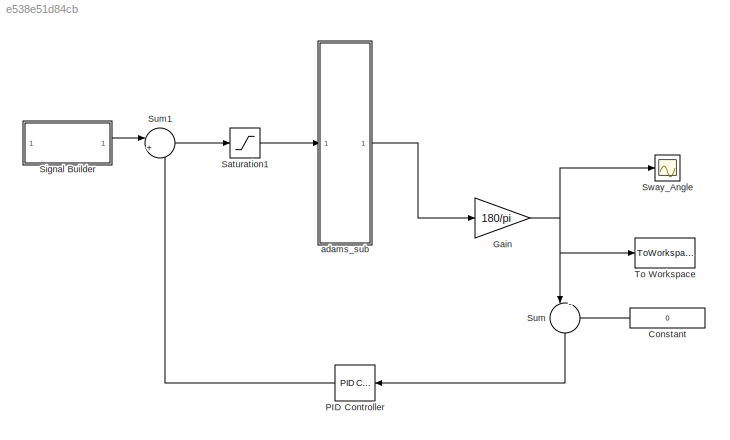
MODEL slx_e538e51d84cb
KIND model
CONFIG AbsTol = auto
CONFIG EnableMultiTasking = on
CONFIG FixedStep = Ts
CONFIG MaxStep = auto
CONFIG MinStep = auto
CONFIG RelTol = 1e-3
CONFIG SampleTimeConstraint = Unconstrained
CONFIG SolverName = ode23t
CONFIG StartTime = 0.0
CONFIG StopTime = 5
BLOCK [Constant] Constant
  NameLocation = top
  Value = 0
BLOCK [Gain] Gain
  Gain = 180/pi
BLOCK [Reference] PID Controller  REF=slpidlib/PID Controller
  NameLocation = top
  SourceBlock = slpidlib/PID Controller
  SourceType = PID 1dof
BLOCK [Saturate] Saturation1
  LowerLimit = -500
  UpperLimit = 500
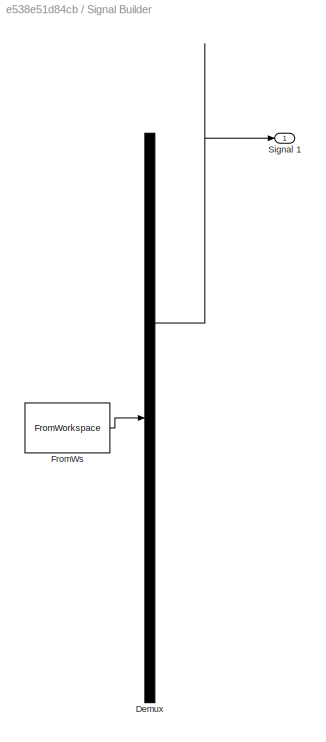
BLOCK [SubSystem] Signal Builder
  ClipboardFcn = sigbuilder_block('clipboard');
  CloseFcn = sigbuilder_block('close');
  ContinueFcn = sigbuilder_block('continue');
  CopyFcn = sigbuilder_block('copy');
  DeleteFcn = sigbuilder_block('delete');
  LoadFcn = sigbuilder_block('load');
  MaskHideContents = on
  ModelCloseFcn = sigbuilder_block('modelClose');
  NameChangeFcn = sigbuilder_block('namechange');
  OpenFcn = sigbuilder_block('open',[252.75 107.25 644.25 387.75 ]);
  PauseFcn = sigbuilder_block('pause');
  PreSaveFcn = sigbuilder_block('preSave');
  StartFcn = sigbuilder_block('start');
  StopFcn = sigbuilder_block('stop');
  Tag = STV Subsys
BLOCK [Demux] Signal Builder/Demux
  DisplayOption = none
  Outputs = 1
  Tag = STV Demux
BLOCK [FromWorkspace] Signal Builder/FromWs
  Tag = STV FromWs
  VariableName = tuvar
BLOCK [Outport] Signal Builder/Signal 1
  Tag = STV Outport
BLOCK [Sum] Sum
  Inputs = |-+
  NameLocation = left
BLOCK [Sum] Sum1
  Inputs = |++
BLOCK [Scope] Sway_Angle
  ActiveDisplayYMaximum = 3.1126072191880634
  ActiveDisplayYMinimum = -2.8753584069201268
  ContainerLayout = {"WindowBounds":[128,48,1280,768]}
  DataLoggingVariableName = ScopeData1
  Floating = off
  GraphicalSettings = {"Style":{"BackgroundColor":[0.12941176470588237,0.12941176470588237,0.12941176470588237],"AxesColor":[0.07058823529411765,0.07058823529411765,0.07058823529411765],"LabelsColor":[0.8509803921568627,0.8509803921568627,0.8509803921568627],"PreserveColors":false,"Visible":[true],"LineStyle":["-"],"LineWidth":[1.5],"BarWidth":[0.9],"LineColor":["auto"],"LineFaceAlpha":[1],"LineEdgeAlpha":[1],"Marker":...<+1992ch>
  MultipleDisplayCache = [{"MaxYLimMag":3.1126072191880634,"MaxYLimReal":3.1126072191880634,"MinYLimMag":0,"MinYLimReal":-2.8753584069201268,"PlotAsMagnitudePhase":false,"ShowGrid":true,"ShowLegend":false,"Title":"%<SignalLabel>","YLabel":""}]
  NumInputPorts = 1
  ScopeFrameLocation = container
  Visible = on
  WasSavedAsWebScope = on
  WindowPosition = [128.000000,48.000000,1280.000000,768.000000,]
BLOCK [ToWorkspace] To Workspace
  MaxDataPoints = inf
  SampleTime = -1
  VariableName = swayAngle
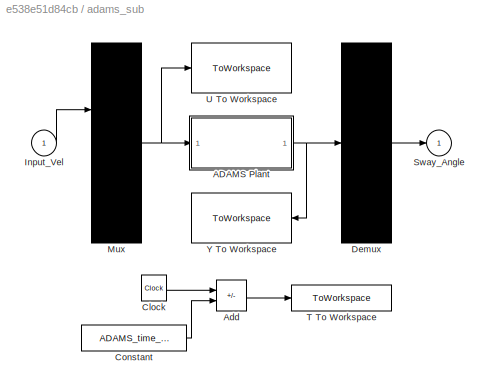
BLOCK [SubSystem] adams_sub
  ShowPortLabels = none
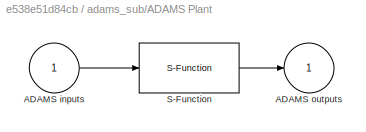
BLOCK [SubSystem] adams_sub/ADAMS Plant
  InitFcn = clear mex
  LoadFcn = %check based on dialog box setting for when setting by popup menu                                             \nif exist('ADAMS_solver_type')                                                                                 \n  if strcmp(ADAMS_solver_type,'C++')                                                                          \n    set_param(gcb,'exetyp','C++');                                 ...<+4486ch>
  OpenFcn = open_system(gcb,'mask')                                                                                                                          \nif not(exist('set_some_params_states'))                                                                                                          \n                                                                                                            ...<+625ch>
BLOCK [Inport] adams_sub/ADAMS Plant/ADAMS inputs
BLOCK [Outport] adams_sub/ADAMS Plant/ADAMS outputs
  InitialOutput = 0
  VectorParamsAs1DForOutWhenUnconnected = off
BLOCK [S-Function] adams_sub/ADAMS Plant/S-Function
  EnableBusSupport = off
  FunctionName = adams_plant
  Parameters = exevie,exesol,stat,outfil,nampre,o_rate,nam_in,namout,dft,modsim,modani,dt_out,inicmd,exetyp,comtyp,ada_host, workdir,pin_interp_order,pout_extrap_order,pin_extrap_order,pout_interp_order,simulink_lead_cosim,time_offset,pinput_id,poutput_id
  SFcnIsStateOwnerBlock = off
  SFunctionDeploymentMode = off
  StopFcn = clear mex
BLOCK [Sum] adams_sub/Add
  IconShape = rectangular
  Inputs = +-
BLOCK [Clock] adams_sub/Clock
BLOCK [Constant] adams_sub/Constant
  Value = ADAMS_time_offset
BLOCK [Demux] adams_sub/Demux
  DisplayOption = none
  Outputs = 1
BLOCK [Inport] adams_sub/Input_Vel
BLOCK [Mux] adams_sub/Mux
  Inputs = 1
BLOCK [Outport] adams_sub/Sway_Angle
BLOCK [ToWorkspace] adams_sub/T To Workspace
  MaxDataPoints = 100000
  VariableName = ADAMS_tout
BLOCK [ToWorkspace] adams_sub/U To Workspace
  MaxDataPoints = 100000
  VariableName = ADAMS_uout
BLOCK [ToWorkspace] adams_sub/Y To Workspace
  MaxDataPoints = 100000
  VariableName = ADAMS_yout
LINE Constant:1 -> Sum:2
NET Gain:1 -> Sum:1, Sway_Angle:1, To Workspace:1
LINE PID Controller:1 -> Sum1:2
LINE Saturation1:1 -> adams_sub:1
LINE Signal Builder:1 -> Sum1:1
LINE Sum1:1 -> Saturation1:1
LINE Sum:1 -> PID Controller:1
LINE adams_sub/ADAMS Plant/ADAMS inputs:1 -> adams_sub/ADAMS Plant/S-Function:1
LINE adams_sub/ADAMS Plant/S-Function:1 -> adams_sub/ADAMS Plant/ADAMS outputs:1
NET adams_sub/ADAMS Plant:1 -> adams_sub/Demux:1, adams_sub/Y To Workspace:1
LINE adams_sub/Add:1 -> adams_sub/T To Workspace:1
LINE adams_sub/Clock:1 -> adams_sub/Add:1
LINE adams_sub/Constant:1 -> adams_sub/Add:2
LINE adams_sub/Demux:1 -> adams_sub/Sway_Angle:1
LINE adams_sub/Input_Vel:1 -> adams_sub/Mux:1
NET adams_sub/Mux:1 -> adams_sub/ADAMS Plant:1, adams_sub/U To Workspace:1
LINE adams_sub:1 -> Gain:1
note: NET lines group one-source signal fan-out (src -> all destinations, sorted); 1:1 wires keep LINE
